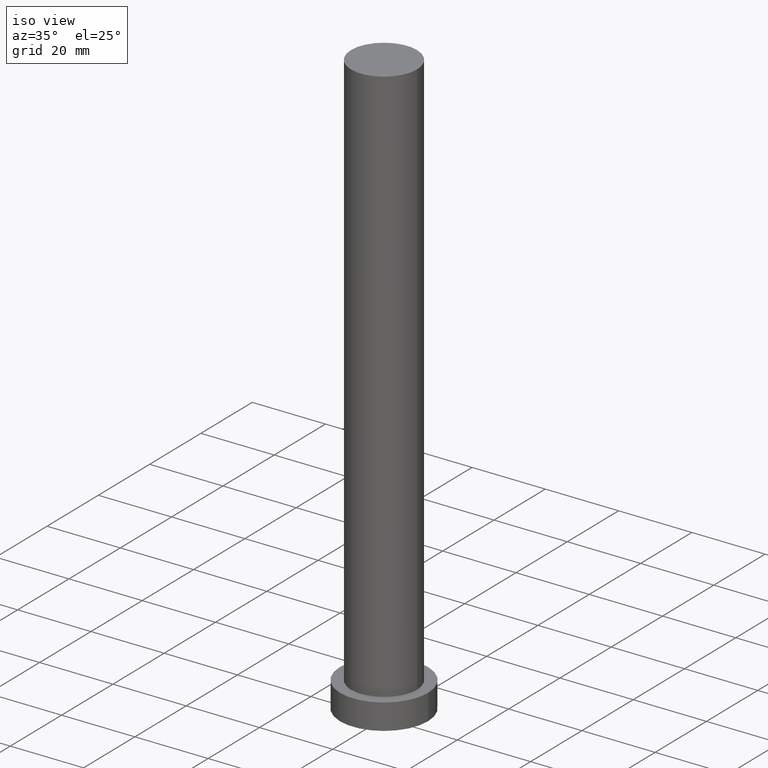
[diagram: clean part render]
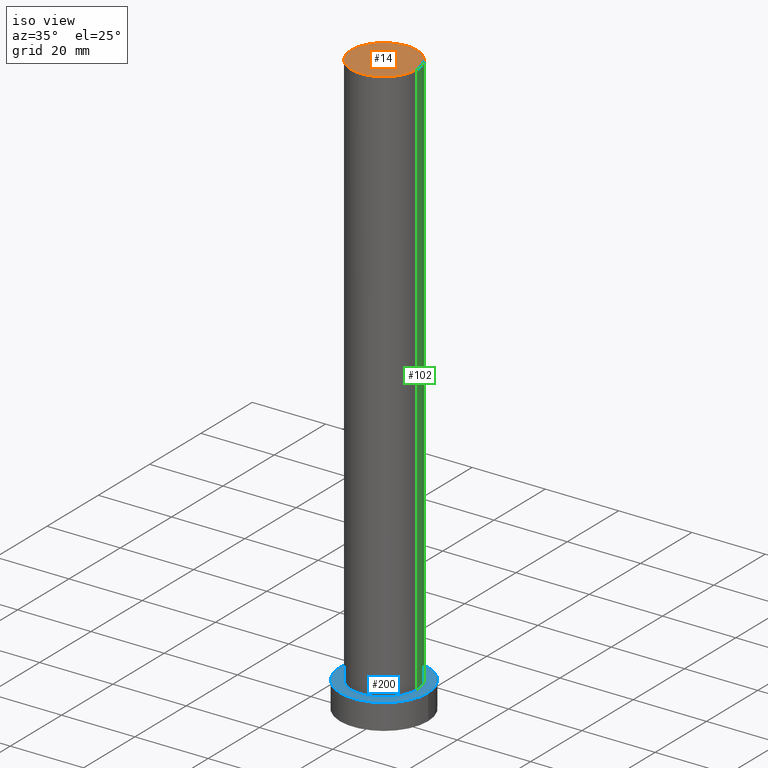
[diagram: same view with three faces highlighted in distinct colors, each labeled with its STEP entity id]
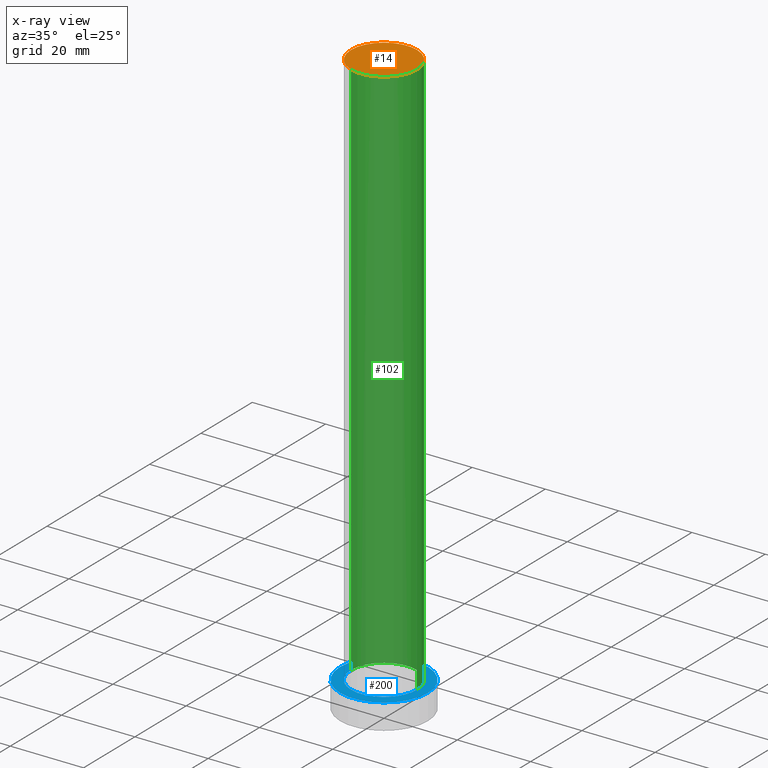
[diagram: x-ray of the same camera — body ghosted, the three highlighted faces saturated]
A machine part, iso view with three faces highlighted in distinct colors.
The next image is the same camera in x-ray (body ghosted, the three faces saturated) — at least one of them is partly hidden behind the body in this view.
Their STEP definitions:

[orange] entity #14 — the highlighted planar face has unit normal (0, 0, 1).
#1 = VERTEX_POINT ( 'NONE', #101 ) ;
#4 = DIRECTION ( 'NONE',  ( 0.000000000000000000, 0.000000000000000000, 1.000000000000000000 ) ) ;
#7 = DIRECTION ( 'NONE',  ( 1.000000000000000000, 0.000000000000000000, 0.000000000000000000 ) ) ;
#10 = EDGE_CURVE ( 'NONE', #177, #1, #235, .T. ) ;
#11 = AXIS2_PLACEMENT_3D ( 'NONE', #137, #154, #237 ) ;
#14 = ADVANCED_FACE ( 'NONE', ( #98 ), #175, .T. ) ;
#20 = DIRECTION ( 'NONE',  ( 1.000000000000000000, 0.000000000000000000, 0.000000000000000000 ) ) ;
#30 = EDGE_CURVE ( 'NONE', #1, #177, #192, .T. ) ;
#62 = ORIENTED_EDGE ( 'NONE', *, *, #10, .T. ) ;
#82 = ORIENTED_EDGE ( 'NONE', *, *, #30, .T. ) ;
#98 = FACE_OUTER_BOUND ( 'NONE', #238, .T. ) ;
#101 = CARTESIAN_POINT ( 'NONE',  ( 9.000000000000000000, 1.102182119232617714E-15, 160.0000000000000000 ) ) ;
#106 = AXIS2_PLACEMENT_3D ( 'NONE', #148, #161, #7 ) ;
#125 = CARTESIAN_POINT ( 'NONE',  ( -9.000000000000000000, 0.000000000000000000, 160.0000000000000000 ) ) ;
#137 = CARTESIAN_POINT ( 'NONE',  ( 0.000000000000000000, 0.000000000000000000, 160.0000000000000000 ) ) ;
#148 = CARTESIAN_POINT ( 'NONE',  ( 0.000000000000000000, 0.000000000000000000, 160.0000000000000000 ) ) ;
#154 = DIRECTION ( 'NONE',  ( 0.000000000000000000, 0.000000000000000000, 1.000000000000000000 ) ) ;
#161 = DIRECTION ( 'NONE',  ( 0.000000000000000000, 0.000000000000000000, 1.000000000000000000 ) ) ;
#175 = PLANE ( 'NONE',  #11 ) ;
#177 = VERTEX_POINT ( 'NONE', #125 ) ;
#179 = CARTESIAN_POINT ( 'NONE',  ( 0.000000000000000000, 0.000000000000000000, 160.0000000000000000 ) ) ;
#192 = CIRCLE ( 'NONE', #106, 9.000000000000000000 ) ;
#219 = AXIS2_PLACEMENT_3D ( 'NONE', #179, #4, #20 ) ;
#235 = CIRCLE ( 'NONE', #219, 9.000000000000000000 ) ;
#237 = DIRECTION ( 'NONE',  ( 1.000000000000000000, 0.000000000000000000, -0.000000000000000000 ) ) ;
#238 = EDGE_LOOP ( 'NONE', ( #62, #82 ) ) ;

[blue] entity #200 — the highlighted planar face has unit normal (0, 0, 1).
#3 = VERTEX_POINT ( 'NONE', #44 ) ;
#26 = CARTESIAN_POINT ( 'NONE',  ( 0.000000000000000000, 0.000000000000000000, 7.000000000000000000 ) ) ;
#28 = DIRECTION ( 'NONE',  ( 0.000000000000000000, 0.000000000000000000, 1.000000000000000000 ) ) ;
#37 = EDGE_LOOP ( 'NONE', ( #39, #197 ) ) ;
#39 = ORIENTED_EDGE ( 'NONE', *, *, #83, .T. ) ;
#42 = ORIENTED_EDGE ( 'NONE', *, *, #123, .F. ) ;
#44 = CARTESIAN_POINT ( 'NONE',  ( 12.00000000000000178, 1.469576158976824144E-15, 7.000000000000000000 ) ) ;
#48 = DIRECTION ( 'NONE',  ( 0.000000000000000000, 0.000000000000000000, 1.000000000000000000 ) ) ;
#50 = CARTESIAN_POINT ( 'NONE',  ( 0.000000000000000000, 0.000000000000000000, 7.000000000000000000 ) ) ;
#65 = VERTEX_POINT ( 'NONE', #124 ) ;
#66 = DIRECTION ( 'NONE',  ( 1.000000000000000000, 0.000000000000000000, 0.000000000000000000 ) ) ;
#70 = CARTESIAN_POINT ( 'NONE',  ( 0.000000000000000000, 0.000000000000000000, 7.000000000000000000 ) ) ;
#71 = DIRECTION ( 'NONE',  ( 1.000000000000000000, 0.000000000000000000, 0.000000000000000000 ) ) ;
#73 = AXIS2_PLACEMENT_3D ( 'NONE', #70, #127, #246 ) ;
#83 = EDGE_CURVE ( 'NONE', #103, #3, #182, .T. ) ;
#85 = PLANE ( 'NONE',  #168 ) ;
#94 = AXIS2_PLACEMENT_3D ( 'NONE', #181, #224, #146 ) ;
#103 = VERTEX_POINT ( 'NONE', #122 ) ;
#107 = FACE_OUTER_BOUND ( 'NONE', #37, .T. ) ;
#115 = AXIS2_PLACEMENT_3D ( 'NONE', #50, #48, #66 ) ;
#121 = ORIENTED_EDGE ( 'NONE', *, *, #193, .F. ) ;
#122 = CARTESIAN_POINT ( 'NONE',  ( -12.00000000000000178, 0.000000000000000000, 7.000000000000000000 ) ) ;
#123 = EDGE_CURVE ( 'NONE', #65, #254, #170, .T. ) ;
#124 = CARTESIAN_POINT ( 'NONE',  ( -9.000000000000000000, 0.000000000000000000, 7.000000000000000000 ) ) ;
#126 = DIRECTION ( 'NONE',  ( 1.000000000000000000, 0.000000000000000000, -0.000000000000000000 ) ) ;
#127 = DIRECTION ( 'NONE',  ( 0.000000000000000000, 0.000000000000000000, 1.000000000000000000 ) ) ;
#133 = CARTESIAN_POINT ( 'NONE',  ( 9.000000000000000000, 1.102182119232617714E-15, 7.000000000000000000 ) ) ;
#141 = EDGE_LOOP ( 'NONE', ( #42, #121 ) ) ;
#143 = FACE_BOUND ( 'NONE', #141, .T. ) ;
#146 = DIRECTION ( 'NONE',  ( 1.000000000000000000, 0.000000000000000000, 0.000000000000000000 ) ) ;
#147 = EDGE_CURVE ( 'NONE', #3, #103, #225, .T. ) ;
#168 = AXIS2_PLACEMENT_3D ( 'NONE', #26, #184, #126 ) ;
#170 = CIRCLE ( 'NONE', #94, 9.000000000000000000 ) ;
#181 = CARTESIAN_POINT ( 'NONE',  ( 0.000000000000000000, 0.000000000000000000, 7.000000000000000000 ) ) ;
#182 = CIRCLE ( 'NONE', #73, 12.00000000000000178 ) ;
#184 = DIRECTION ( 'NONE',  ( 0.000000000000000000, 0.000000000000000000, 1.000000000000000000 ) ) ;
#193 = EDGE_CURVE ( 'NONE', #254, #65, #241, .T. ) ;
#197 = ORIENTED_EDGE ( 'NONE', *, *, #147, .T. ) ;
#198 = AXIS2_PLACEMENT_3D ( 'NONE', #204, #28, #71 ) ;
#200 = ADVANCED_FACE ( 'NONE', ( #143, #107 ), #85, .T. ) ;
#204 = CARTESIAN_POINT ( 'NONE',  ( 0.000000000000000000, 0.000000000000000000, 7.000000000000000000 ) ) ;
#224 = DIRECTION ( 'NONE',  ( 0.000000000000000000, 0.000000000000000000, 1.000000000000000000 ) ) ;
#225 = CIRCLE ( 'NONE', #115, 12.00000000000000178 ) ;
#241 = CIRCLE ( 'NONE', #198, 9.000000000000000000 ) ;
#246 = DIRECTION ( 'NONE',  ( 1.000000000000000000, 0.000000000000000000, 0.000000000000000000 ) ) ;
#254 = VERTEX_POINT ( 'NONE', #133 ) ;

[green] entity #102 — the highlighted cylindrical surface (partial cylindrical patch) has radius 9 mm, axis along (-0, -0, -1).
#1 = VERTEX_POINT ( 'NONE', #101 ) ;
#5 = LINE ( 'NONE', #227, #150 ) ;
#7 = DIRECTION ( 'NONE',  ( 1.000000000000000000, 0.000000000000000000, 0.000000000000000000 ) ) ;
#9 = CYLINDRICAL_SURFACE ( 'NONE', #138, 9.000000000000000000 ) ;
#18 = EDGE_CURVE ( 'NONE', #1, #254, #213, .T. ) ;
#27 = DIRECTION ( 'NONE',  ( -0.000000000000000000, -0.000000000000000000, -1.000000000000000000 ) ) ;
#28 = DIRECTION ( 'NONE',  ( 0.000000000000000000, 0.000000000000000000, 1.000000000000000000 ) ) ;
#30 = EDGE_CURVE ( 'NONE', #1, #177, #192, .T. ) ;
#51 = CARTESIAN_POINT ( 'NONE',  ( 0.000000000000000000, 0.000000000000000000, 160.0000000000000000 ) ) ;
#57 = EDGE_CURVE ( 'NONE', #177, #65, #5, .T. ) ;
#65 = VERTEX_POINT ( 'NONE', #124 ) ;
#68 = DIRECTION ( 'NONE',  ( -0.000000000000000000, -0.000000000000000000, -1.000000000000000000 ) ) ;
#71 = DIRECTION ( 'NONE',  ( 1.000000000000000000, 0.000000000000000000, 0.000000000000000000 ) ) ;
#101 = CARTESIAN_POINT ( 'NONE',  ( 9.000000000000000000, 1.102182119232617714E-15, 160.0000000000000000 ) ) ;
#102 = ADVANCED_FACE ( 'NONE', ( #244 ), #9, .T. ) ;
#106 = AXIS2_PLACEMENT_3D ( 'NONE', #148, #161, #7 ) ;
#118 = ORIENTED_EDGE ( 'NONE', *, *, #30, .F. ) ;
#120 = ORIENTED_EDGE ( 'NONE', *, *, #57, .F. ) ;
#124 = CARTESIAN_POINT ( 'NONE',  ( -9.000000000000000000, 0.000000000000000000, 7.000000000000000000 ) ) ;
#125 = CARTESIAN_POINT ( 'NONE',  ( -9.000000000000000000, 0.000000000000000000, 160.0000000000000000 ) ) ;
#133 = CARTESIAN_POINT ( 'NONE',  ( 9.000000000000000000, 1.102182119232617714E-15, 7.000000000000000000 ) ) ;
#138 = AXIS2_PLACEMENT_3D ( 'NONE', #51, #68, #145 ) ;
#142 = VECTOR ( 'NONE', #27, 1000.000000000000000 ) ;
#145 = DIRECTION ( 'NONE',  ( -1.000000000000000000, 0.000000000000000000, 0.000000000000000000 ) ) ;
#148 = CARTESIAN_POINT ( 'NONE',  ( 0.000000000000000000, 0.000000000000000000, 160.0000000000000000 ) ) ;
#150 = VECTOR ( 'NONE', #183, 1000.000000000000000 ) ;
#158 = ORIENTED_EDGE ( 'NONE', *, *, #18, .T. ) ;
#161 = DIRECTION ( 'NONE',  ( 0.000000000000000000, 0.000000000000000000, 1.000000000000000000 ) ) ;
#177 = VERTEX_POINT ( 'NONE', #125 ) ;
#183 = DIRECTION ( 'NONE',  ( -0.000000000000000000, -0.000000000000000000, -1.000000000000000000 ) ) ;
#186 = CARTESIAN_POINT ( 'NONE',  ( 9.000000000000000000, 1.102182119232617714E-15, 160.0000000000000000 ) ) ;
#192 = CIRCLE ( 'NONE', #106, 9.000000000000000000 ) ;
#193 = EDGE_CURVE ( 'NONE', #254, #65, #241, .T. ) ;
#195 = EDGE_LOOP ( 'NONE', ( #118, #158, #240, #120 ) ) ;
#198 = AXIS2_PLACEMENT_3D ( 'NONE', #204, #28, #71 ) ;
#204 = CARTESIAN_POINT ( 'NONE',  ( 0.000000000000000000, 0.000000000000000000, 7.000000000000000000 ) ) ;
#213 = LINE ( 'NONE', #186, #142 ) ;
#227 = CARTESIAN_POINT ( 'NONE',  ( -9.000000000000000000, 0.000000000000000000, 160.0000000000000000 ) ) ;
#240 = ORIENTED_EDGE ( 'NONE', *, *, #193, .T. ) ;
#241 = CIRCLE ( 'NONE', #198, 9.000000000000000000 ) ;
#244 = FACE_OUTER_BOUND ( 'NONE', #195, .T. ) ;
#254 = VERTEX_POINT ( 'NONE', #133 ) ;